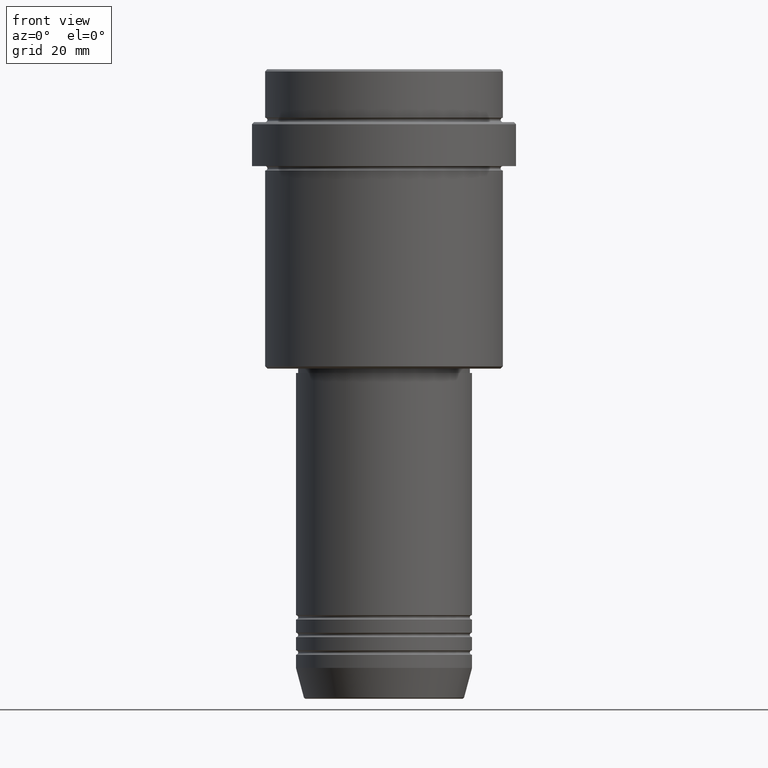
[diagram: clean part render]
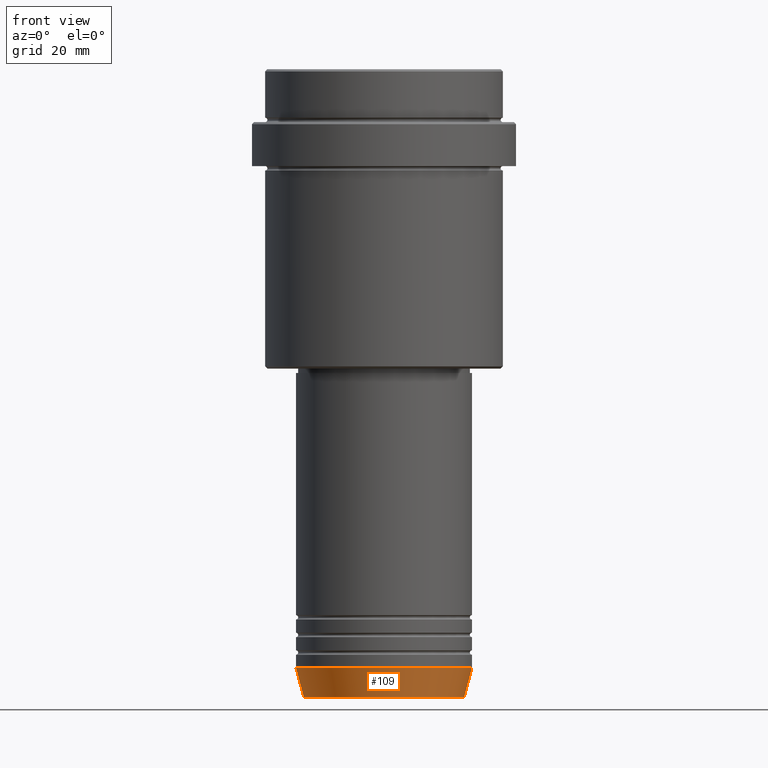
[diagram: same view with one face highlighted and labeled with its STEP entity id]
A machine part, front view. The second image highlights one B-rep face of the part: STEP entity #109.
In plain terms, the highlighted conical surface has half-angle 15 deg.
Its self-contained STEP definition (entity closure, byte-faithful):
#77 = CARTESIAN_POINT ( 'NONE',  ( -20.00000000000000000, 2.449293598294706513E-15, -136.0000000000000000 ) ) ;
#86 = ORIENTED_EDGE ( 'NONE', *, *, #361, .T. ) ;
#108 = VECTOR ( 'NONE', #837, 1000.000000000000000 ) ;
#109 = ADVANCED_FACE ( 'NONE', ( #1152 ), #1181, .T. ) ;
#164 = EDGE_CURVE ( 'NONE', #933, #898, #560, .T. ) ;
#191 = DIRECTION ( 'NONE',  ( -0.000000000000000000, -0.000000000000000000, 1.000000000000000000 ) ) ;
#224 = CIRCLE ( 'NONE', #1042, 20.00000000000000000 ) ;
#352 = CARTESIAN_POINT ( 'NONE',  ( 0.000000000000000000, 0.000000000000000000, -136.0000000000000000 ) ) ;
#361 = EDGE_CURVE ( 'NONE', #898, #840, #406, .T. ) ;
#406 = LINE ( 'NONE', #725, #108 ) ;
#421 = ORIENTED_EDGE ( 'NONE', *, *, #794, .F. ) ;
#485 = VERTEX_POINT ( 'NONE', #1079 ) ;
#524 = DIRECTION ( 'NONE',  ( 1.000000000000000000, 0.000000000000000000, 0.000000000000000000 ) ) ;
#560 = CIRCLE ( 'NONE', #969, 18.22365507213719127 ) ;
#610 = DIRECTION ( 'NONE',  ( -0.000000000000000000, -0.000000000000000000, 1.000000000000000000 ) ) ;
#725 = CARTESIAN_POINT ( 'NONE',  ( 20.00000000000000000, 0.000000000000000000, -136.0000000000000000 ) ) ;
#779 = EDGE_CURVE ( 'NONE', #485, #840, #224, .T. ) ;
#794 = EDGE_CURVE ( 'NONE', #933, #485, #1191, .T. ) ;
#819 = CARTESIAN_POINT ( 'NONE',  ( 0.000000000000000000, 0.000000000000000000, -136.0000000000000000 ) ) ;
#837 = DIRECTION ( 'NONE',  ( 0.2588190451025209060, 0.000000000000000000, 0.9659258262890682012 ) ) ;
#840 = VERTEX_POINT ( 'NONE', #908 ) ;
#862 = DIRECTION ( 'NONE',  ( 1.000000000000000000, 0.000000000000000000, 0.000000000000000000 ) ) ;
#893 = AXIS2_PLACEMENT_3D ( 'NONE', #819, #610, #1251 ) ;
#898 = VERTEX_POINT ( 'NONE', #1400 ) ;
#908 = CARTESIAN_POINT ( 'NONE',  ( 20.00000000000000000, 0.000000000000000000, -136.0000000000000000 ) ) ;
#933 = VERTEX_POINT ( 'NONE', #1087 ) ;
#969 = AXIS2_PLACEMENT_3D ( 'NONE', #1286, #191, #524 ) ;
#971 = DIRECTION ( 'NONE',  ( -0.000000000000000000, -0.000000000000000000, 1.000000000000000000 ) ) ;
#976 = ORIENTED_EDGE ( 'NONE', *, *, #779, .F. ) ;
#1042 = AXIS2_PLACEMENT_3D ( 'NONE', #352, #971, #862 ) ;
#1069 = EDGE_LOOP ( 'NONE', ( #421, #1203, #86, #976 ) ) ;
#1079 = CARTESIAN_POINT ( 'NONE',  ( -20.00000000000000000, 2.449293598294706513E-15, -136.0000000000000000 ) ) ;
#1087 = CARTESIAN_POINT ( 'NONE',  ( -18.22365507213719127, 2.340523841790265113E-15, -142.6294095225512706 ) ) ;
#1152 = FACE_OUTER_BOUND ( 'NONE', #1069, .T. ) ;
#1181 = CONICAL_SURFACE ( 'NONE', #893, 20.00000000000000000, 0.2617993877991495744 ) ;
#1191 = LINE ( 'NONE', #77, #1216 ) ;
#1203 = ORIENTED_EDGE ( 'NONE', *, *, #164, .T. ) ;
#1216 = VECTOR ( 'NONE', #1290, 1000.000000000000000 ) ;
#1251 = DIRECTION ( 'NONE',  ( 1.000000000000000000, 0.000000000000000000, 0.000000000000000000 ) ) ;
#1286 = CARTESIAN_POINT ( 'NONE',  ( 0.000000000000000000, 0.000000000000000000, -142.6294095225512706 ) ) ;
#1290 = DIRECTION ( 'NONE',  ( -0.2588190451025209060, 3.169619151431766790E-17, 0.9659258262890682012 ) ) ;
#1400 = CARTESIAN_POINT ( 'NONE',  ( 18.22365507213719127, 0.000000000000000000, -142.6294095225512706 ) ) ;